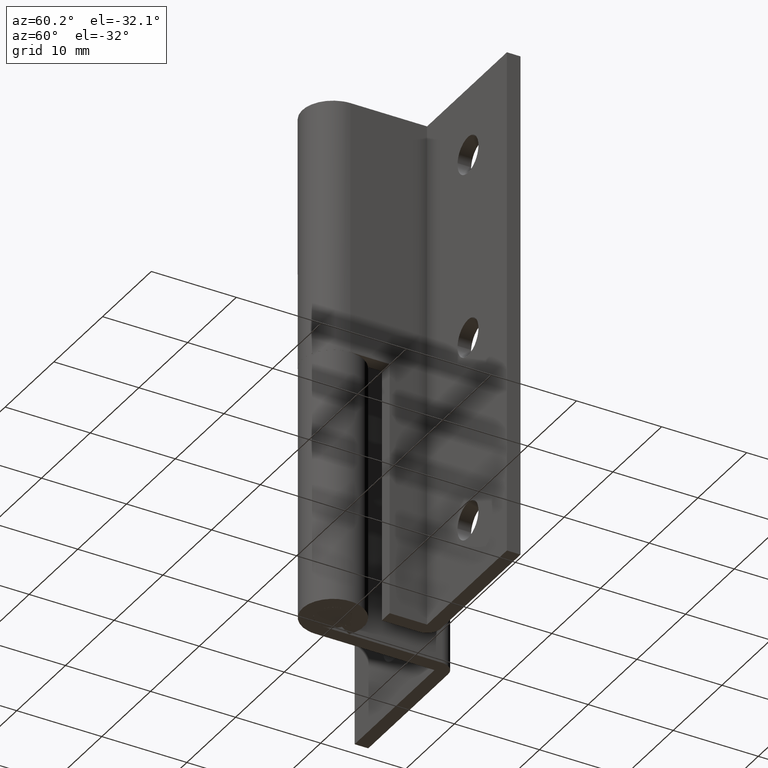
[diagram: clean part render]
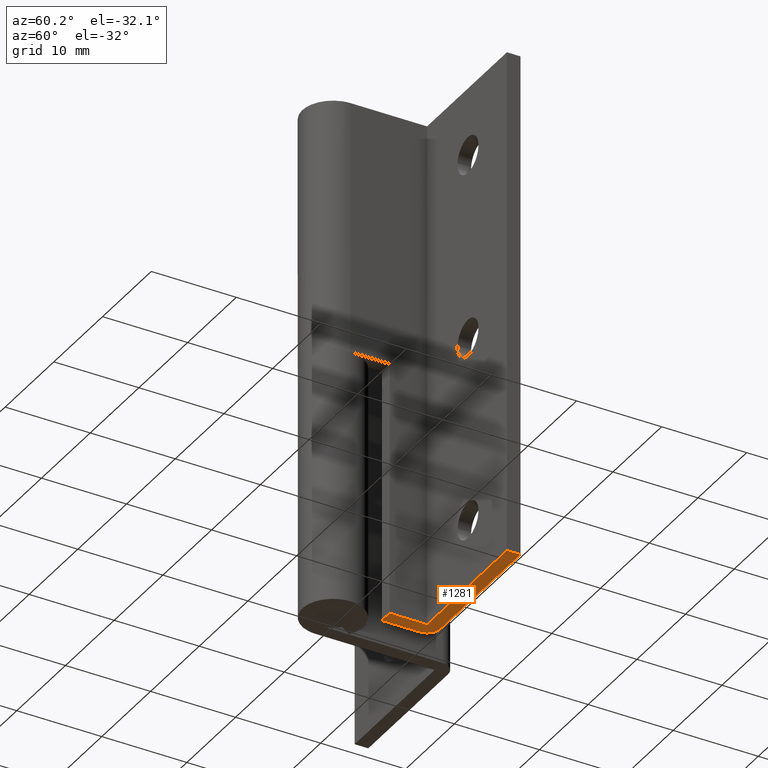
[diagram: same view with one face highlighted and labeled with its STEP entity id]
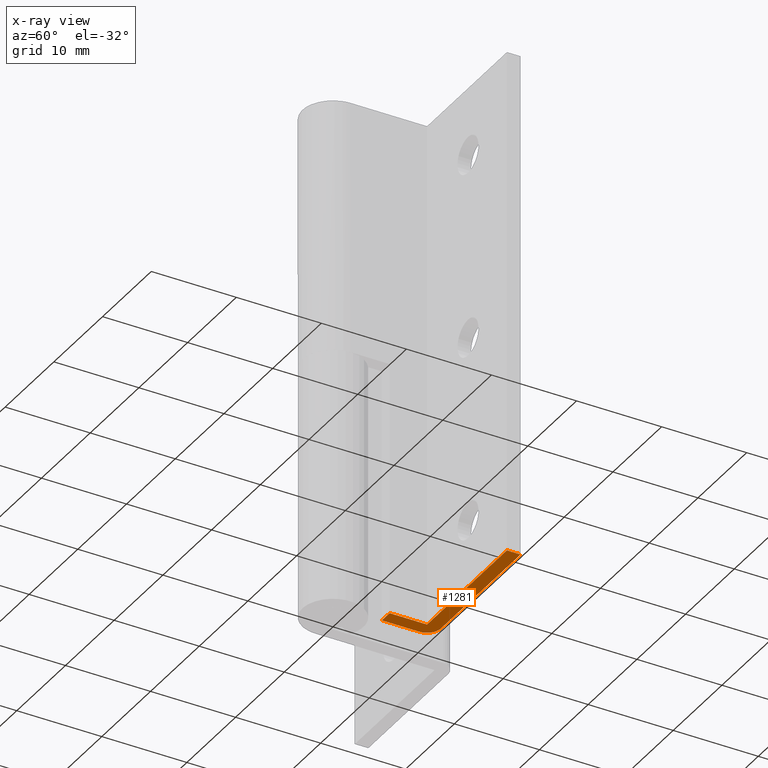
[diagram: x-ray of the same camera — body ghosted, the highlighted face saturated]
A machine part, auxiliary view. The second image highlights one B-rep face of the part: STEP entity #1281.
The next image is the same camera in x-ray: the body ghosted, the highlighted face saturated — about 0% of this face is hidden behind the body in this view.
In plain terms, the highlighted face is a freeform B-spline surface patch.
Its self-contained STEP definition (entity closure, byte-faithful):
#997=CARTESIAN_POINT('',(2.0,8.999998999999901,0.0));
#998=VERTEX_POINT('',#997);
#999=CARTESIAN_POINT('',(3.600000000000000,10.599998999999899,0.0));
#1000=VERTEX_POINT('',#999);
#1001=CARTESIAN_POINT('',(2.0,8.999998999999901,0.0));
#1002=CARTESIAN_POINT('',(2.000000000000000,10.599998999999901,0.0));
#1003=CARTESIAN_POINT('',(3.600000000000000,10.599998999999899,0.0));
#1011=(BOUNDED_CURVE()B_SPLINE_CURVE(2,(#1001,#1002,#1003),.UNSPECIFIED.,.F.,.U.)CURVE()GEOMETRIC_REPRESENTATION_ITEM()QUASI_UNIFORM_CURVE()RATIONAL_B_SPLINE_CURVE((1.0,0.707106781186548,1.0))REPRESENTATION_ITEM(''));
#1012=EDGE_CURVE('',#998,#1000,#1011,.T.);
#1127=CARTESIAN_POINT('',(2.0,4.599991000000000,0.0));
#1128=VERTEX_POINT('',#1127);
#1134=CARTESIAN_POINT('',(3.599999999999935,4.599991000000000,2.816589E-016));
#1135=VERTEX_POINT('',#1134);
#1136=CARTESIAN_POINT('',(2.0,4.599991000000000,0.0));
#1137=CARTESIAN_POINT('',(3.599999999999935,4.599991000000000,2.816589E-016));
#1138=QUASI_UNIFORM_CURVE('',1,(#1136,#1137),.UNSPECIFIED.,.F.,.U.);
#1139=EDGE_CURVE('',#1128,#1135,#1138,.T.);
#1241=CARTESIAN_POINT('',(1.100899699596176,10.899699838560970,0.0));
#1242=CARTESIAN_POINT('',(20.899107495740861,10.899699838560970,0.0));
#1243=CARTESIAN_POINT('',(1.100899699596176,4.300290429660185,0.0));
#1244=CARTESIAN_POINT('',(20.899107495740861,4.300290429660185,0.0));
#1245=B_SPLINE_SURFACE_WITH_KNOTS('',1,1,((#1241,#1243),(#1242,#1244)),.UNSPECIFIED.,.F.,.F.,.U.,(2,2),(2,2),(0.0,19.798207796144691),(0.0,6.599409408900788),.UNSPECIFIED.);
#1246=CARTESIAN_POINT('',(2.0,8.999998999999901,0.0));
#1247=CARTESIAN_POINT('',(2.0,4.599991000000000,0.0));
#1248=QUASI_UNIFORM_CURVE('',1,(#1246,#1247),.UNSPECIFIED.,.F.,.U.);
#1249=EDGE_CURVE('',#998,#1128,#1248,.T.);
#1250=ORIENTED_EDGE('',*,*,#1249,.F.);
#1251=ORIENTED_EDGE('',*,*,#1012,.T.);
#1252=CARTESIAN_POINT('',(20.000008000000101,10.599998999999899,0.0));
#1253=VERTEX_POINT('',#1252);
#1254=CARTESIAN_POINT('',(20.000008000000101,10.599998999999899,0.0));
#1255=CARTESIAN_POINT('',(3.600000000000000,10.599998999999899,0.0));
#1256=QUASI_UNIFORM_CURVE('',1,(#1254,#1255),.UNSPECIFIED.,.F.,.U.);
#1257=EDGE_CURVE('',#1253,#1000,#1256,.T.);
#1258=ORIENTED_EDGE('',*,*,#1257,.F.);
#1259=CARTESIAN_POINT('',(20.000008000000101,8.999998999999999,0.0));
#1260=VERTEX_POINT('',#1259);
#1261=CARTESIAN_POINT('',(20.000008000000101,8.999998999999999,0.0));
#1262=CARTESIAN_POINT('',(20.000008000000101,10.599998999999899,0.0));
#1263=QUASI_UNIFORM_CURVE('',1,(#1261,#1262),.UNSPECIFIED.,.F.,.U.);
#1264=EDGE_CURVE('',#1260,#1253,#1263,.T.);
#1265=ORIENTED_EDGE('',*,*,#1264,.F.);
#1266=CARTESIAN_POINT('',(3.599999999999895,8.999998999999999,0.0));
#1267=VERTEX_POINT('',#1266);
#1268=CARTESIAN_POINT('',(3.599999999999895,8.999998999999999,0.0));
#1269=CARTESIAN_POINT('',(20.000008000000101,8.999998999999999,0.0));
#1270=QUASI_UNIFORM_CURVE('',1,(#1268,#1269),.UNSPECIFIED.,.F.,.U.);
#1271=EDGE_CURVE('',#1267,#1260,#1270,.T.);
#1272=ORIENTED_EDGE('',*,*,#1271,.F.);
#1273=CARTESIAN_POINT('',(3.599999999999935,4.599991000000000,2.816589E-016));
#1274=CARTESIAN_POINT('',(3.599999999999895,8.999998999999999,0.0));
#1275=QUASI_UNIFORM_CURVE('',1,(#1273,#1274),.UNSPECIFIED.,.F.,.U.);
#1276=EDGE_CURVE('',#1135,#1267,#1275,.T.);
#1277=ORIENTED_EDGE('',*,*,#1276,.F.);
#1278=ORIENTED_EDGE('',*,*,#1139,.F.);
#1279=EDGE_LOOP('',(#1250,#1251,#1258,#1265,#1272,#1277,#1278));
#1280=FACE_OUTER_BOUND('',#1279,.T.);
#1281=ADVANCED_FACE('',(#1280),#1245,.T.);